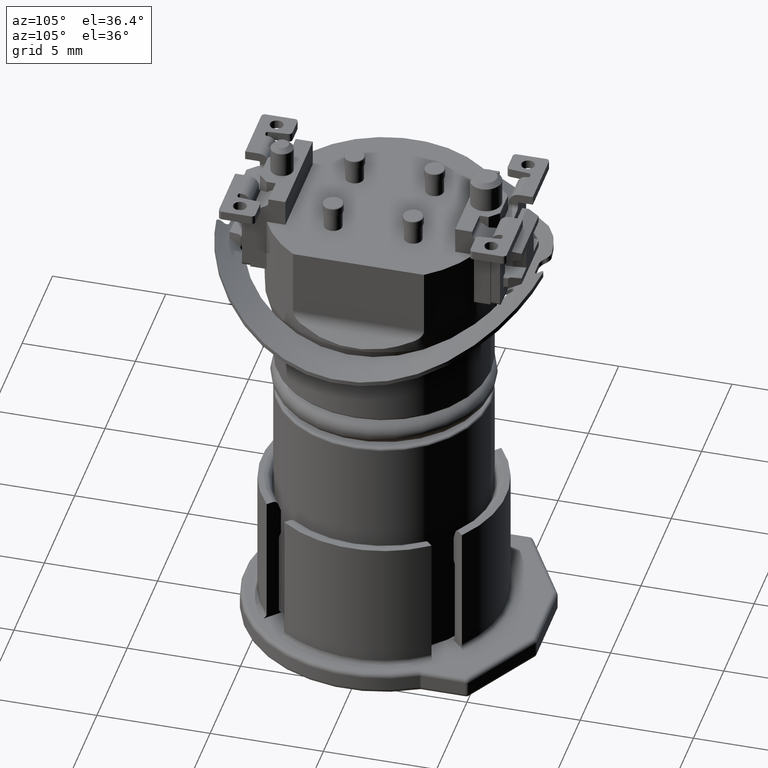
[diagram: clean part render]
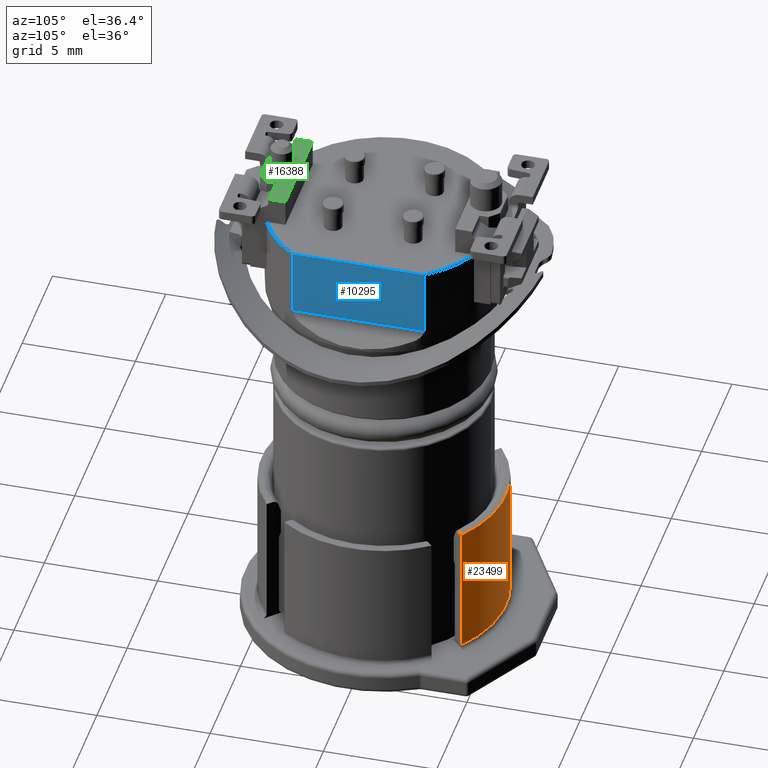
[diagram: same view with three faces highlighted in distinct colors, each labeled with its STEP entity id]
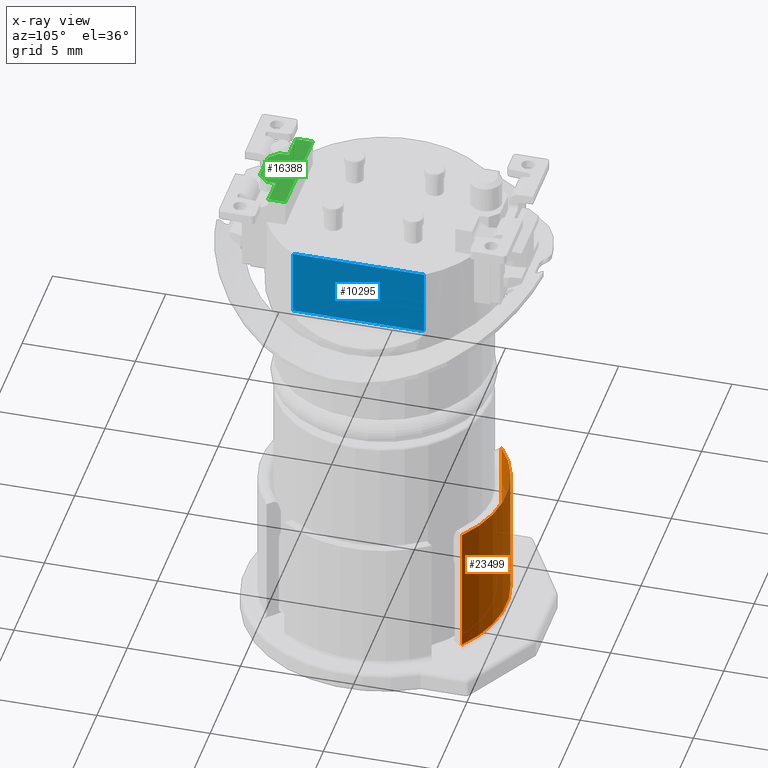
[diagram: x-ray of the same camera — body ghosted, the three highlighted faces saturated]
A machine part, auxiliary view with three faces highlighted in distinct colors.
The next image is the same camera in x-ray (body ghosted, the three faces saturated) — at least one of them is partly hidden behind the body in this view.
Their STEP definitions:

[orange] entity #23499 — the highlighted cylindrical surface (partial cylindrical patch) has radius 5.4 mm, axis along (0, 0, 1).
#21756=DIRECTION('',(0.E0,-1.E0,0.E0));
#21757=VECTOR('',#21756,5.8E0);
#21758=CARTESIAN_POINT('',(3.251038713897E0,-7.E-1,4.311698885677E0));
#21759=LINE('',#21758,#21757);
#21760=CARTESIAN_POINT('',(1.224646799147E-14,-6.5E0,0.E0));
#21761=DIRECTION('',(0.E0,-1.E0,0.E0));
#21762=DIRECTION('',(6.020442062772E-1,0.E0,7.984627566068E-1));
#21763=AXIS2_PLACEMENT_3D('',#21760,#21761,#21762);
#21765=DIRECTION('',(0.E0,-1.E0,0.E0));
#21766=VECTOR('',#21765,5.8E0);
#21767=CARTESIAN_POINT('',(-3.251038713897E0,-7.E-1,4.311698885677E0));
#21768=LINE('',#21767,#21766);
#21810=CARTESIAN_POINT('',(1.224646799147E-14,-7.E-1,0.E0));
#21811=DIRECTION('',(0.E0,-1.E0,0.E0));
#21812=DIRECTION('',(6.020442062772E-1,0.E0,7.984627566068E-1));
#21813=AXIS2_PLACEMENT_3D('',#21810,#21811,#21812);
#22159=CARTESIAN_POINT('',(3.251038713897E0,-6.5E0,4.311698885677E0));
#22160=CARTESIAN_POINT('',(-3.251038713897E0,-6.5E0,4.311698885677E0));
#22161=VERTEX_POINT('',#22159);
#22162=VERTEX_POINT('',#22160);
#22325=CARTESIAN_POINT('',(3.251038713897E0,-7.E-1,4.311698885677E0));
#22326=VERTEX_POINT('',#22325);
#22327=CARTESIAN_POINT('',(-3.251038713897E0,-7.E-1,4.311698885677E0));
#22328=VERTEX_POINT('',#22327);
#23485=CARTESIAN_POINT('',(1.224646799147E-14,-5.E-1,0.E0));
#23486=DIRECTION('',(0.E0,-1.E0,0.E0));
#23487=DIRECTION('',(0.E0,0.E0,-1.E0));
#23488=AXIS2_PLACEMENT_3D('',#23485,#23486,#23487);
#23489=CYLINDRICAL_SURFACE('',#23488,5.4E0);
#23491=ORIENTED_EDGE('',*,*,#23490,.F.);
#23493=ORIENTED_EDGE('',*,*,#23492,.T.);
#23494=ORIENTED_EDGE('',*,*,#23436,.T.);
#23496=ORIENTED_EDGE('',*,*,#23495,.F.);
#23497=EDGE_LOOP('',(#23491,#23493,#23494,#23496));
#23498=FACE_OUTER_BOUND('',#23497,.F.);
#21764=CIRCLE('',#21763,5.4E0);
#21814=CIRCLE('',#21813,5.4E0);
#23436=EDGE_CURVE('',#22161,#22162,#21764,.T.);
#23490=EDGE_CURVE('',#22326,#22328,#21814,.T.);
#23492=EDGE_CURVE('',#22326,#22161,#21759,.T.);
#23495=EDGE_CURVE('',#22328,#22162,#21768,.T.);
#23499=ADVANCED_FACE('',(#23498),#23489,.T.);

[blue] entity #10295 — the highlighted planar face has unit normal (-1, 0, 0).
#13=DIRECTION('',(0.E0,1.E0,0.E0));
#14=VECTOR('',#13,5.786190456596E0);
#15=CARTESIAN_POINT('',(4.2E0,-2.893095228298E0,-1.2E0));
#16=LINE('',#15,#14);
#81=DIRECTION('',(0.E0,0.E0,-1.E0));
#82=VECTOR('',#81,2.991709623135E0);
#83=CARTESIAN_POINT('',(4.2E0,2.893095228298E0,-1.2E0));
#84=LINE('',#83,#82);
#85=DIRECTION('',(0.E0,1.E0,0.E0));
#86=VECTOR('',#85,5.786190456596E0);
#87=CARTESIAN_POINT('',(4.2E0,-2.893095228298E0,-4.191709623135E0));
#88=LINE('',#87,#86);
#89=DIRECTION('',(0.E0,0.E0,1.E0));
#90=VECTOR('',#89,2.991709623135E0);
#91=CARTESIAN_POINT('',(4.2E0,-2.893095228298E0,-4.191709623135E0));
#92=LINE('',#91,#90);
#101=CARTESIAN_POINT('',(4.2E0,2.893095228298E0,-4.191709623135E0));
#197=CARTESIAN_POINT('',(4.2E0,-2.893095228298E0,-4.191709623135E0));
#8996=CARTESIAN_POINT('',(4.2E0,-2.893095228298E0,-1.2E0));
#8997=CARTESIAN_POINT('',(4.2E0,2.893095228298E0,-1.2E0));
#8998=VERTEX_POINT('',#8996);
#8999=VERTEX_POINT('',#8997);
#9098=VERTEX_POINT('',#197);
#9099=VERTEX_POINT('',#101);
#10281=CARTESIAN_POINT('',(4.2E0,-5.E0,-2.991709623135E0));
#10282=DIRECTION('',(-1.E0,0.E0,0.E0));
#10283=DIRECTION('',(0.E0,0.E0,1.E0));
#10284=AXIS2_PLACEMENT_3D('',#10281,#10282,#10283);
#10285=PLANE('',#10284);
#10287=ORIENTED_EDGE('',*,*,#10286,.T.);
#10289=ORIENTED_EDGE('',*,*,#10288,.F.);
#10291=ORIENTED_EDGE('',*,*,#10290,.T.);
#10292=ORIENTED_EDGE('',*,*,#10234,.T.);
#10293=EDGE_LOOP('',(#10287,#10289,#10291,#10292));
#10294=FACE_OUTER_BOUND('',#10293,.F.);
#10234=EDGE_CURVE('',#8998,#8999,#16,.T.);
#10286=EDGE_CURVE('',#8999,#9099,#84,.T.);
#10288=EDGE_CURVE('',#9098,#9099,#88,.T.);
#10290=EDGE_CURVE('',#9098,#8998,#92,.T.);
#10295=ADVANCED_FACE('',(#10294),#10285,.F.);

[green] entity #16388 — the highlighted planar face has unit normal (0, 0, 1).
#5018=DIRECTION('',(7.071067811865E-1,7.071067811865E-1,0.E0));
#5019=VECTOR('',#5018,5.656854249492E-1);
#5020=CARTESIAN_POINT('',(6.5E-1,-5.3E0,0.E0));
#5021=LINE('',#5020,#5019);
#5022=DIRECTION('',(1.E0,0.E0,0.E0));
#5023=VECTOR('',#5022,1.3E0);
#5024=CARTESIAN_POINT('',(-6.5E-1,-5.3E0,0.E0));
#5025=LINE('',#5024,#5023);
#5026=DIRECTION('',(7.071067811865E-1,-7.071067811865E-1,0.E0));
#5027=VECTOR('',#5026,5.656854249492E-1);
#5028=CARTESIAN_POINT('',(-1.05E0,-4.9E0,0.E0));
#5029=LINE('',#5028,#5027);
#5030=DIRECTION('',(0.E0,-1.E0,0.E0));
#5031=VECTOR('',#5030,4.E-1);
#5032=CARTESIAN_POINT('',(-1.05E0,-4.5E0,0.E0));
#5033=LINE('',#5032,#5031);
#5034=DIRECTION('',(1.E0,0.E0,0.E0));
#5035=VECTOR('',#5034,1.2E0);
#5036=CARTESIAN_POINT('',(-2.25E0,-4.5E0,0.E0));
#5037=LINE('',#5036,#5035);
#5038=DIRECTION('',(0.E0,-1.E0,0.E0));
#5039=VECTOR('',#5038,7.5E-1);
#5040=CARTESIAN_POINT('',(-2.25E0,-3.75E0,0.E0));
#5041=LINE('',#5040,#5039);
#5042=DIRECTION('',(-1.E0,0.E0,0.E0));
#5043=VECTOR('',#5042,4.5E0);
#5044=CARTESIAN_POINT('',(2.25E0,-3.75E0,0.E0));
#5045=LINE('',#5044,#5043);
#5046=DIRECTION('',(0.E0,1.E0,0.E0));
#5047=VECTOR('',#5046,7.5E-1);
#5048=CARTESIAN_POINT('',(2.25E0,-4.5E0,0.E0));
#5049=LINE('',#5048,#5047);
#5050=DIRECTION('',(-1.E0,0.E0,0.E0));
#5051=VECTOR('',#5050,1.2E0);
#5052=CARTESIAN_POINT('',(2.25E0,-4.5E0,0.E0));
#5053=LINE('',#5052,#5051);
#5054=DIRECTION('',(0.E0,-1.E0,0.E0));
#5055=VECTOR('',#5054,4.E-1);
#5056=CARTESIAN_POINT('',(1.05E0,-4.5E0,0.E0));
#5057=LINE('',#5056,#5055);
#5058=CARTESIAN_POINT('',(0.E0,-4.5E0,0.E0));
#5059=DIRECTION('',(0.E0,0.E0,1.E0));
#5060=DIRECTION('',(0.E0,-1.E0,0.E0));
#5061=AXIS2_PLACEMENT_3D('',#5058,#5059,#5060);
#5063=CARTESIAN_POINT('',(0.E0,-4.5E0,0.E0));
#5064=DIRECTION('',(0.E0,0.E0,1.E0));
#5065=DIRECTION('',(0.E0,1.E0,0.E0));
#5066=AXIS2_PLACEMENT_3D('',#5063,#5064,#5065);
#8114=CARTESIAN_POINT('',(2.25E0,-3.75E0,0.E0));
#8115=CARTESIAN_POINT('',(-2.25E0,-3.75E0,0.E0));
#8116=VERTEX_POINT('',#8114);
#8117=VERTEX_POINT('',#8115);
#8150=CARTESIAN_POINT('',(0.E0,-5.E0,0.E0));
#8151=VERTEX_POINT('',#8150);
#8152=CARTESIAN_POINT('',(0.E0,-4.E0,0.E0));
#8153=VERTEX_POINT('',#8152);
#9008=CARTESIAN_POINT('',(2.25E0,-4.5E0,0.E0));
#9009=CARTESIAN_POINT('',(1.05E0,-4.5E0,0.E0));
#9010=VERTEX_POINT('',#9008);
#9011=VERTEX_POINT('',#9009);
#9040=CARTESIAN_POINT('',(-1.05E0,-4.5E0,0.E0));
#9041=VERTEX_POINT('',#9040);
#9052=CARTESIAN_POINT('',(-2.25E0,-4.5E0,0.E0));
#9053=VERTEX_POINT('',#9052);
#9064=CARTESIAN_POINT('',(6.5E-1,-5.3E0,0.E0));
#9065=CARTESIAN_POINT('',(1.05E0,-4.9E0,0.E0));
#9066=VERTEX_POINT('',#9064);
#9067=VERTEX_POINT('',#9065);
#9070=CARTESIAN_POINT('',(-1.05E0,-4.9E0,0.E0));
#9072=VERTEX_POINT('',#9070);
#9074=CARTESIAN_POINT('',(-6.5E-1,-5.3E0,0.E0));
#9075=VERTEX_POINT('',#9074);
#16358=CARTESIAN_POINT('',(0.E0,0.E0,0.E0));
#16359=DIRECTION('',(0.E0,0.E0,1.E0));
#16360=DIRECTION('',(0.E0,-1.E0,0.E0));
#16361=AXIS2_PLACEMENT_3D('',#16358,#16359,#16360);
#16362=PLANE('',#16361);
#16363=ORIENTED_EDGE('',*,*,#16349,.F.);
#16364=ORIENTED_EDGE('',*,*,#16107,.F.);
#16366=ORIENTED_EDGE('',*,*,#16365,.F.);
#16368=ORIENTED_EDGE('',*,*,#16367,.F.);
#16370=ORIENTED_EDGE('',*,*,#16369,.F.);
#16372=ORIENTED_EDGE('',*,*,#16371,.F.);
#16374=ORIENTED_EDGE('',*,*,#16373,.F.);
#16375=ORIENTED_EDGE('',*,*,#16315,.F.);
#16377=ORIENTED_EDGE('',*,*,#16376,.T.);
#16379=ORIENTED_EDGE('',*,*,#16378,.T.);
#16380=EDGE_LOOP('',(#16363,#16364,#16366,#16368,#16370,#16372,#16374,#16375,
#16377,#16379));
#16381=FACE_OUTER_BOUND('',#16380,.F.);
#16383=ORIENTED_EDGE('',*,*,#16382,.T.);
#16385=ORIENTED_EDGE('',*,*,#16384,.T.);
#16386=EDGE_LOOP('',(#16383,#16385));
#16387=FACE_BOUND('',#16386,.F.);
#5062=CIRCLE('',#5061,5.E-1);
#5067=CIRCLE('',#5066,5.E-1);
#16107=EDGE_CURVE('',#9075,#9066,#5025,.T.);
#16315=EDGE_CURVE('',#9010,#8116,#5049,.T.);
#16349=EDGE_CURVE('',#9066,#9067,#5021,.T.);
#16365=EDGE_CURVE('',#9072,#9075,#5029,.T.);
#16367=EDGE_CURVE('',#9041,#9072,#5033,.T.);
#16369=EDGE_CURVE('',#9053,#9041,#5037,.T.);
#16371=EDGE_CURVE('',#8117,#9053,#5041,.T.);
#16373=EDGE_CURVE('',#8116,#8117,#5045,.T.);
#16376=EDGE_CURVE('',#9010,#9011,#5053,.T.);
#16378=EDGE_CURVE('',#9011,#9067,#5057,.T.);
#16382=EDGE_CURVE('',#8151,#8153,#5062,.T.);
#16384=EDGE_CURVE('',#8153,#8151,#5067,.T.);
#16388=ADVANCED_FACE('',(#16381,#16387),#16362,.T.);